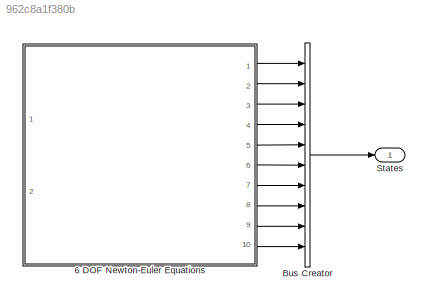
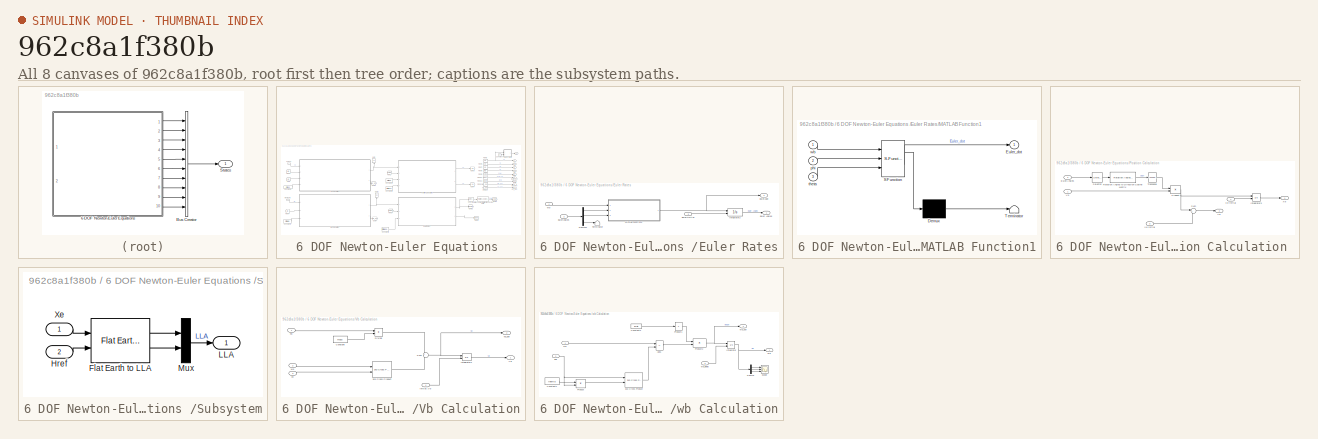
[diagram: thumbnail index - all 8 canvases of the model, root first then tree order]
MODEL slx_962c8a1f380b
KIND model
CONFIG AbsTol = auto
CONFIG EnableMultiTasking = off
CONFIG FixedStep = Ts
CONFIG MaxStep = auto
CONFIG MinStep = auto
CONFIG RelTol = 1e-3
CONFIG SampleTimeConstraint = Unconstrained
CONFIG Solver = VariableStepAuto
CONFIG SolverName = VariableStepAuto
CONFIG StartTime = 0.0
CONFIG StopTime = Tfinal
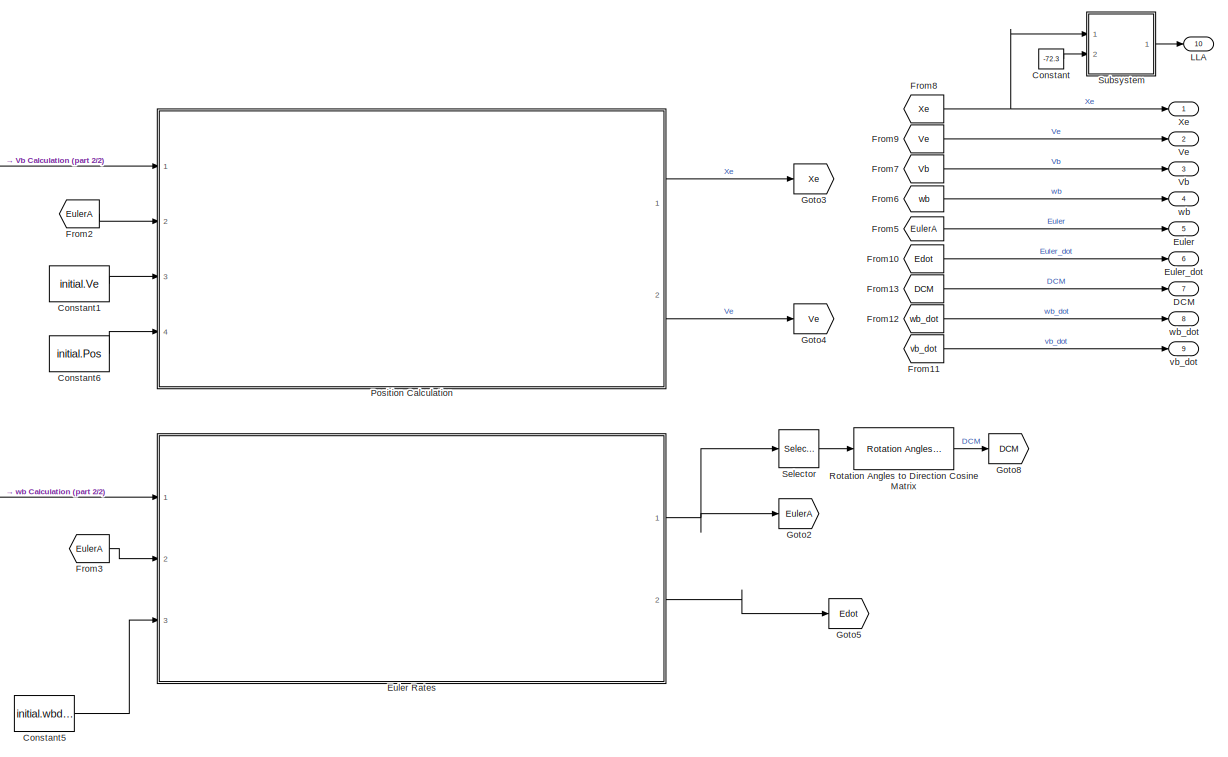
[diagram: 6 DOF Newton-Euler Equations  - part 1/2, right side, full height]
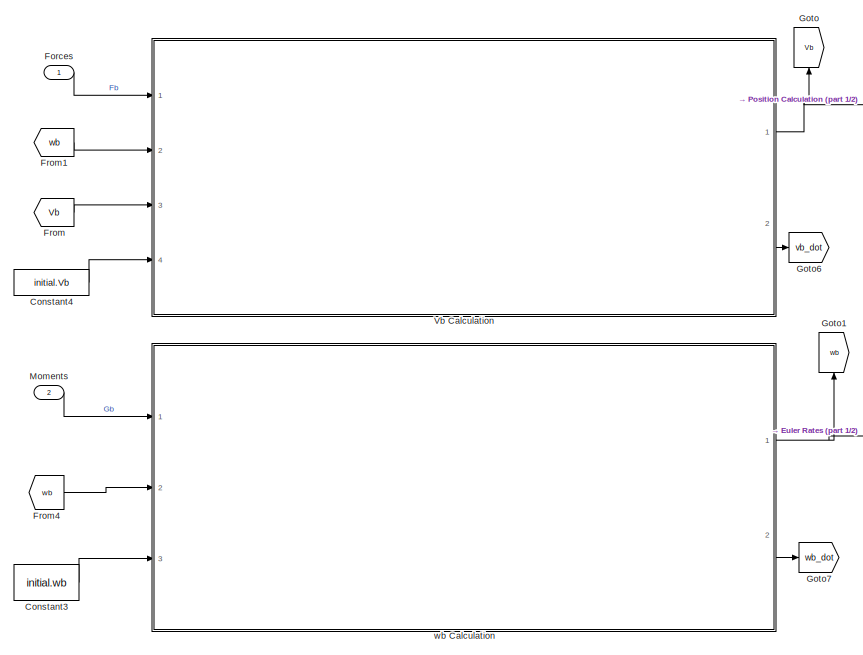
[diagram: 6 DOF Newton-Euler Equations  - part 2/2, left side, full height]
BLOCK [SubSystem] 6 DOF Newton-Euler Equations 
  Ports = [2, 10]
  RequestExecContextInheritance = off
BLOCK [Constant] 6 DOF Newton-Euler Equations /Constant
  Value = -72.3
BLOCK [Constant] 6 DOF Newton-Euler Equations /Constant1
  Value = initial.Ve
BLOCK [Constant] 6 DOF Newton-Euler Equations /Constant3
  Value = initial.wb
BLOCK [Constant] 6 DOF Newton-Euler Equations /Constant4
  Value = initial.Vb
BLOCK [Constant] 6 DOF Newton-Euler Equations /Constant5
  Value = initial.wbdot
BLOCK [Constant] 6 DOF Newton-Euler Equations /Constant6
  Value = initial.Pos
BLOCK [Outport] 6 DOF Newton-Euler Equations /DCM
  Port = 7
BLOCK [Outport] 6 DOF Newton-Euler Equations /Euler
  Port = 5
BLOCK [SubSystem] 6 DOF Newton-Euler Equations /Euler Rates
  Ports = [3, 2]
  RequestExecContextInheritance = off
BLOCK [Demux] 6 DOF Newton-Euler Equations /Euler Rates/Demux1
  Outputs = 3
  Ports = [1, 3]
BLOCK [Outport] 6 DOF Newton-Euler Equations /Euler Rates/Euler Angles
BLOCK [Outport] 6 DOF Newton-Euler Equations /Euler Rates/EulerAdot 
  Port = 2
BLOCK [Inport] 6 DOF Newton-Euler Equations /Euler Rates/EulerAinitial 
  Port = 3
BLOCK [Inport] 6 DOF Newton-Euler Equations /Euler Rates/EulerAngles
  Port = 2
BLOCK [Integrator] 6 DOF Newton-Euler Equations /Euler Rates/Integrator2
  IgnoreLimit = on
  InitialConditionSource = external
  LimitOutput = on
  LowerSaturationLimit = [-pi;-pi/2 ;-pi]
  Ports = [2, 1]
  UpperSaturationLimit = [pi; pi/2;pi]
  WrappedStateLowerValue = [-pi;-pi/2 ;-pi]
  WrappedStateUpperValue = [pi; pi/2;pi]
BLOCK [SubSystem] 6 DOF Newton-Euler Equations /Euler Rates/MATLAB Function1
  ErrorFcn = Stateflow.Translate.translate
  PermitHierarchicalResolution = ExplicitOnly
  Ports = [3, 1]
  RequestExecContextInheritance = off
  SFBlockType = MATLAB Function
  TreatAsAtomicUnit = on
BLOCK [Demux] 6 DOF Newton-Euler Equations /Euler Rates/MATLAB Function1/ Demux 
  Outputs = 1
  Ports = [1, 1]
BLOCK [S-Function] 6 DOF Newton-Euler Equations /Euler Rates/MATLAB Function1/ SFunction 
  EnableBusSupport = off
  FunctionName = sf_sfun
  PortCounts = [3 2]
  Ports = [3, 2]
  SFcnIsStateOwnerBlock = off
  SFunctionDeploymentMode = off
  Tag = Stateflow S-Function 1
BLOCK [Terminator] 6 DOF Newton-Euler Equations /Euler Rates/MATLAB Function1/ Terminator 
BLOCK [Outport] 6 DOF Newton-Euler Equations /Euler Rates/MATLAB Function1/Euler_dot
BLOCK [Inport] 6 DOF Newton-Euler Equations /Euler Rates/MATLAB Function1/phi
  Port = 2
BLOCK [Inport] 6 DOF Newton-Euler Equations /Euler Rates/MATLAB Function1/theta
  Port = 3
BLOCK [Inport] 6 DOF Newton-Euler Equations /Euler Rates/MATLAB Function1/wb
BLOCK [Terminator] 6 DOF Newton-Euler Equations /Euler Rates/Terminator
BLOCK [Inport] 6 DOF Newton-Euler Equations /Euler Rates/wb
BLOCK [Outport] 6 DOF Newton-Euler Equations /Euler_dot
  Port = 6
BLOCK [Inport] 6 DOF Newton-Euler Equations /Forces 
BLOCK [From] 6 DOF Newton-Euler Equations /From
  GotoTag = Vb
BLOCK [From] 6 DOF Newton-Euler Equations /From1
  GotoTag = wb
BLOCK [From] 6 DOF Newton-Euler Equations /From10
  GotoTag = Edot
BLOCK [From] 6 DOF Newton-Euler Equations /From11
  GotoTag = vb_dot
BLOCK [From] 6 DOF Newton-Euler Equations /From12
  GotoTag = wb_dot
BLOCK [From] 6 DOF Newton-Euler Equations /From13
  GotoTag = DCM
BLOCK [From] 6 DOF Newton-Euler Equations /From2
  GotoTag = EulerA
BLOCK [From] 6 DOF Newton-Euler Equations /From3
  GotoTag = EulerA
BLOCK [From] 6 DOF Newton-Euler Equations /From4
  GotoTag = wb
BLOCK [From] 6 DOF Newton-Euler Equations /From5
  GotoTag = EulerA
BLOCK [From] 6 DOF Newton-Euler Equations /From6
  GotoTag = wb
BLOCK [From] 6 DOF Newton-Euler Equations /From7
  GotoTag = Vb
BLOCK [From] 6 DOF Newton-Euler Equations /From8
  GotoTag = Xe
BLOCK [From] 6 DOF Newton-Euler Equations /From9
  GotoTag = Ve
BLOCK [Goto] 6 DOF Newton-Euler Equations /Goto
  GotoTag = Vb
  NameLocation = right
BLOCK [Goto] 6 DOF Newton-Euler Equations /Goto1
  GotoTag = wb
  NameLocation = right
BLOCK [Goto] 6 DOF Newton-Euler Equations /Goto2
  GotoTag = EulerA
BLOCK [Goto] 6 DOF Newton-Euler Equations /Goto3
  GotoTag = Xe
BLOCK [Goto] 6 DOF Newton-Euler Equations /Goto4
  GotoTag = Ve
BLOCK [Goto] 6 DOF Newton-Euler Equations /Goto5
  GotoTag = Edot
BLOCK [Goto] 6 DOF Newton-Euler Equations /Goto6
  GotoTag = vb_dot
BLOCK [Goto] 6 DOF Newton-Euler Equations /Goto7
  GotoTag = wb_dot
BLOCK [Goto] 6 DOF Newton-Euler Equations /Goto8
  GotoTag = DCM
BLOCK [Outport] 6 DOF Newton-Euler Equations /LLA 
  Port = 10
BLOCK [Inport] 6 DOF Newton-Euler Equations /Moments
  Port = 2
BLOCK [SubSystem] 6 DOF Newton-Euler Equations /Position Calculation 
  Ports = [4, 2]
  RequestExecContextInheritance = off
BLOCK [Inport] 6 DOF Newton-Euler Equations /Position Calculation /EulerAngles
  Port = 2
BLOCK [Integrator] 6 DOF Newton-Euler Equations /Position Calculation /Integrator3
  InitialConditionSource = external
  Ports = [2, 1]
BLOCK [Product] 6 DOF Newton-Euler Equations /Position Calculation /Product
  Multiplication = Matrix(*)
  Ports = [2, 1]
BLOCK [Reference] 6 DOF Newton-Euler Equations /Position Calculation /Rotation Angles to Direction Cosine Matrix  REF=sharedtransform/Rotation Angles to
Direction Cosine Matrix
  AttributesFormatString = Rotation Order: %<rotationOrder>
  Ports = [1, 1]
  SourceBlock = sharedtransform/Rotation Angles to\nDirection Cosine Matrix
  SourceProductBaseCode = AE,PW,MT,VE,VP
  SourceType = Ang2DCM
BLOCK [Selector] 6 DOF Newton-Euler Equations /Position Calculation /Selector
  IndexOptions = Index vector (dialog)
  Indices = [3 2 1]
  InputPortWidth = 3
  OutputSizes = 1
  Ports = [1, 1]
BLOCK [Sum] 6 DOF Newton-Euler Equations /Position Calculation /Sum
  Inputs = |++
  Ports = [2, 1]
BLOCK [Math] 6 DOF Newton-Euler Equations /Position Calculation /Transpose
  Operator = transpose
  Ports = [1, 1]
BLOCK [Inport] 6 DOF Newton-Euler Equations /Position Calculation /Vb
BLOCK [Outport] 6 DOF Newton-Euler Equations /Position Calculation /Ve
  Port = 2
BLOCK [Inport] 6 DOF Newton-Euler Equations /Position Calculation /Ve initial 
  Port = 3
BLOCK [Outport] 6 DOF Newton-Euler Equations /Position Calculation /Xe
BLOCK [Inport] 6 DOF Newton-Euler Equations /Position Calculation /Xe initial 
  Port = 4
BLOCK [Reference] 6 DOF Newton-Euler Equations /Rotation Angles to Direction Cosine Matrix  REF=sharedtransform/Rotation Angles to
Direction Cosine Matrix
  AttributesFormatString = Rotation Order: %<rotationOrder>
  Ports = [1, 1]
  SourceBlock = sharedtransform/Rotation Angles to\nDirection Cosine Matrix
  SourceProductBaseCode = AE,PW,MT,VE,VP
  SourceType = Ang2DCM
BLOCK [Selector] 6 DOF Newton-Euler Equations /Selector
  IndexOptions = Index vector (dialog)
  Indices = [3 2 1]
  InputPortWidth = 3
  OutputSizes = 1
  Ports = [1, 1]
BLOCK [SubSystem] 6 DOF Newton-Euler Equations /Subsystem
  Ports = [2, 1]
  RequestExecContextInheritance = off
BLOCK [Reference] 6 DOF Newton-Euler Equations /Subsystem/Flat Earth to LLA  REF=aerolibtransform2/Flat Earth to LLA
  Ports = [2, 2]
  SourceBlock = aerolibtransform2/Flat Earth to LLA
  SourceProductBaseCode = AE
  SourceType = Flat Earth to LLA
BLOCK [Inport] 6 DOF Newton-Euler Equations /Subsystem/Href
  Port = 2
BLOCK [Outport] 6 DOF Newton-Euler Equations /Subsystem/LLA
BLOCK [Mux] 6 DOF Newton-Euler Equations /Subsystem/Mux
  DisplayOption = bar
  Inputs = 2
  Ports = [2, 1]
BLOCK [Inport] 6 DOF Newton-Euler Equations /Subsystem/Xe
BLOCK [Outport] 6 DOF Newton-Euler Equations /Vb
  Port = 3
BLOCK [SubSystem] 6 DOF Newton-Euler Equations /Vb Calculation
  Ports = [4, 2]
  RequestExecContextInheritance = off
BLOCK [Reference] 6 DOF Newton-Euler Equations /Vb Calculation/3x3 Cross Product  REF=sharedutil/3x3 Cross Product
  Ports = [2, 1]
  SourceBlock = sharedutil/3x3 Cross Product
  SourceProductBaseCode = AE,PW,MT,VE,VP
  SourceType = CrossProduct
BLOCK [Constant] 6 DOF Newton-Euler Equations /Vb Calculation/Constant
  Value = mass
BLOCK [Product] 6 DOF Newton-Euler Equations /Vb Calculation/Divide
  Inputs = */
  Ports = [2, 1]
BLOCK [Inport] 6 DOF Newton-Euler Equations /Vb Calculation/Fb
BLOCK [Integrator] 6 DOF Newton-Euler Equations /Vb Calculation/Integrator1
  InitialConditionSource = external
  Ports = [2, 1]
BLOCK [Sum] 6 DOF Newton-Euler Equations /Vb Calculation/Sum
  Inputs = +|-
  Ports = [2, 1]
BLOCK [Outport] 6 DOF Newton-Euler Equations /Vb Calculation/Vb
BLOCK [Inport] 6 DOF Newton-Euler Equations /Vb Calculation/initial.Vb
  Port = 4
BLOCK [Inport] 6 DOF Newton-Euler Equations /Vb Calculation/vb 
  Port = 3
BLOCK [Outport] 6 DOF Newton-Euler Equations /Vb Calculation/vb_dot
  Port = 2
BLOCK [Inport] 6 DOF Newton-Euler Equations /Vb Calculation/wb
  Port = 2
BLOCK [Outport] 6 DOF Newton-Euler Equations /Ve
  Port = 2
BLOCK [Outport] 6 DOF Newton-Euler Equations /Xe
BLOCK [Outport] 6 DOF Newton-Euler Equations /vb_dot
  Port = 9
BLOCK [Outport] 6 DOF Newton-Euler Equations /wb
  Port = 4
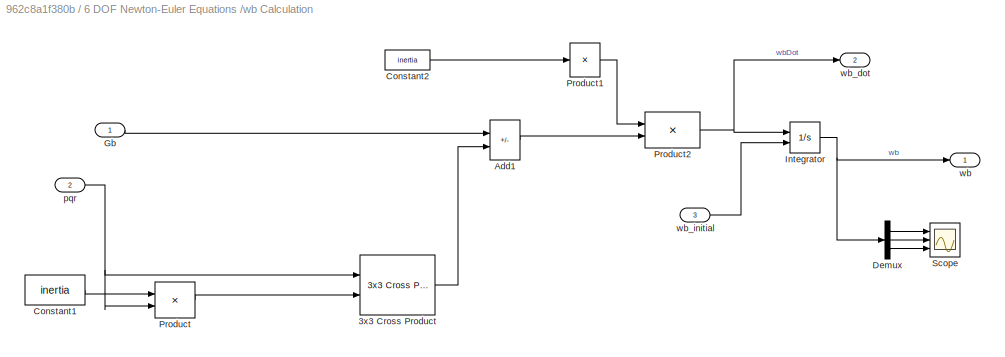
BLOCK [SubSystem] 6 DOF Newton-Euler Equations /wb Calculation
  Ports = [3, 2]
  RequestExecContextInheritance = off
BLOCK [Reference] 6 DOF Newton-Euler Equations /wb Calculation/3x3 Cross Product  REF=sharedutil/3x3 Cross Product
  Ports = [2, 1]
  SourceBlock = sharedutil/3x3 Cross Product
  SourceProductBaseCode = AE,PW,MT,VE,VP
  SourceType = CrossProduct
BLOCK [Sum] 6 DOF Newton-Euler Equations /wb Calculation/Add1
  IconShape = rectangular
  Inputs = +-
  Ports = [2, 1]
BLOCK [Constant] 6 DOF Newton-Euler Equations /wb Calculation/Constant1
  Value = inertia
BLOCK [Constant] 6 DOF Newton-Euler Equations /wb Calculation/Constant2
  Value = inertia
BLOCK [Demux] 6 DOF Newton-Euler Equations /wb Calculation/Demux
  Outputs = 3
  Ports = [1, 3]
BLOCK [Inport] 6 DOF Newton-Euler Equations /wb Calculation/Gb
BLOCK [Integrator] 6 DOF Newton-Euler Equations /wb Calculation/Integrator
  InitialConditionSource = external
  Ports = [2, 1]
BLOCK [Product] 6 DOF Newton-Euler Equations /wb Calculation/Product
  Multiplication = Matrix(*)
  Ports = [2, 1]
BLOCK [Product] 6 DOF Newton-Euler Equations /wb Calculation/Product1
  Inputs = /
  Multiplication = Matrix(*)
  Ports = [1, 1]
BLOCK [Product] 6 DOF Newton-Euler Equations /wb Calculation/Product2
  Multiplication = Matrix(*)
  Ports = [2, 1]
BLOCK [Scope] 6 DOF Newton-Euler Equations /wb Calculation/Scope
  Floating = off
  NumInputPorts = 3
  Ports = [3]
  ScopeSpecificationString = Simulink.scopes.TimeScopeBlockCfg('CurrentConfiguration', extmgr.ConfigurationSet(extmgr.Configuration('Core','General UI',true),extmgr.Configuration('Core','Source UI',true),extmgr.Configuration('Sources','WiredSimulink',true),extmgr.Configuration('Visuals','Time Domain',true,'SerializedDisplays',{struct('MinYLimReal','-7.11144','MaxYLimReal','5.5874','YLabelReal','','MinYLimMag','0.00000','MaxYL...<+2682ch>
BLOCK [Inport] 6 DOF Newton-Euler Equations /wb Calculation/pqr
  Port = 2
BLOCK [Outport] 6 DOF Newton-Euler Equations /wb Calculation/wb
BLOCK [Outport] 6 DOF Newton-Euler Equations /wb Calculation/wb_dot 
  Port = 2
BLOCK [Inport] 6 DOF Newton-Euler Equations /wb Calculation/wb_initial 
  Port = 3
BLOCK [Outport] 6 DOF Newton-Euler Equations /wb_dot
  Port = 8
BLOCK [BusCreator] Bus Creator
  DisplayOption = bar
  InheritFromInputs = on
  Inputs = 10
  Ports = [10, 1]
BLOCK [Outport] States
LINE 6 DOF Newton-Euler Equations /Constant1:1 -> 6 DOF Newton-Euler Equations /Position Calculation :3
LINE 6 DOF Newton-Euler Equations /Constant3:1 -> 6 DOF Newton-Euler Equations /wb Calculation:3
LINE 6 DOF Newton-Euler Equations /Constant4:1 -> 6 DOF Newton-Euler Equations /Vb Calculation:4
LINE 6 DOF Newton-Euler Equations /Constant5:1 -> 6 DOF Newton-Euler Equations /Euler Rates:3
LINE 6 DOF Newton-Euler Equations /Constant6:1 -> 6 DOF Newton-Euler Equations /Position Calculation :4
LINE 6 DOF Newton-Euler Equations /Constant:1 -> 6 DOF Newton-Euler Equations /Subsystem:2
LINE 6 DOF Newton-Euler Equations /Euler Rates/Demux1:1 -> 6 DOF Newton-Euler Equations /Euler Rates/MATLAB Function1:2
LINE 6 DOF Newton-Euler Equations /Euler Rates/Demux1:2 -> 6 DOF Newton-Euler Equations /Euler Rates/MATLAB Function1:3
LINE 6 DOF Newton-Euler Equations /Euler Rates/Demux1:3 -> 6 DOF Newton-Euler Equations /Euler Rates/Terminator:1
LINE 6 DOF Newton-Euler Equations /Euler Rates/EulerAinitial :1 -> 6 DOF Newton-Euler Equations /Euler Rates/Integrator2:2
LINE 6 DOF Newton-Euler Equations /Euler Rates/EulerAngles:1 -> 6 DOF Newton-Euler Equations /Euler Rates/Demux1:1
LINE 6 DOF Newton-Euler Equations /Euler Rates/Integrator2:1 -> 6 DOF Newton-Euler Equations /Euler Rates/Euler Angles:1
NET 6 DOF Newton-Euler Equations /Euler Rates/MATLAB Function1:1 -> 6 DOF Newton-Euler Equations /Euler Rates/EulerAdot :1, 6 DOF Newton-Euler Equations /Euler Rates/Integrator2:1
LINE 6 DOF Newton-Euler Equations /Euler Rates/wb:1 -> 6 DOF Newton-Euler Equations /Euler Rates/MATLAB Function1:1
NET 6 DOF Newton-Euler Equations /Euler Rates:1 -> 6 DOF Newton-Euler Equations /Goto2:1, 6 DOF Newton-Euler Equations /Selector:1
LINE 6 DOF Newton-Euler Equations /Euler Rates:2 -> 6 DOF Newton-Euler Equations /Goto5:1
LINE 6 DOF Newton-Euler Equations /Forces :1 -> 6 DOF Newton-Euler Equations /Vb Calculation:1
LINE 6 DOF Newton-Euler Equations /From10:1 -> 6 DOF Newton-Euler Equations /Euler_dot:1
LINE 6 DOF Newton-Euler Equations /From11:1 -> 6 DOF Newton-Euler Equations /vb_dot:1
LINE 6 DOF Newton-Euler Equations /From12:1 -> 6 DOF Newton-Euler Equations /wb_dot:1
LINE 6 DOF Newton-Euler Equations /From13:1 -> 6 DOF Newton-Euler Equations /DCM:1
LINE 6 DOF Newton-Euler Equations /From1:1 -> 6 DOF Newton-Euler Equations /Vb Calculation:2
LINE 6 DOF Newton-Euler Equations /From2:1 -> 6 DOF Newton-Euler Equations /Position Calculation :2
LINE 6 DOF Newton-Euler Equations /From3:1 -> 6 DOF Newton-Euler Equations /Euler Rates:2
LINE 6 DOF Newton-Euler Equations /From4:1 -> 6 DOF Newton-Euler Equations /wb Calculation:2
LINE 6 DOF Newton-Euler Equations /From5:1 -> 6 DOF Newton-Euler Equations /Euler:1
LINE 6 DOF Newton-Euler Equations /From6:1 -> 6 DOF Newton-Euler Equations /wb:1
LINE 6 DOF Newton-Euler Equations /From7:1 -> 6 DOF Newton-Euler Equations /Vb:1
NET 6 DOF Newton-Euler Equations /From8:1 -> 6 DOF Newton-Euler Equations /Subsystem:1, 6 DOF Newton-Euler Equations /Xe:1
LINE 6 DOF Newton-Euler Equations /From9:1 -> 6 DOF Newton-Euler Equations /Ve:1
LINE 6 DOF Newton-Euler Equations /From:1 -> 6 DOF Newton-Euler Equations /Vb Calculation:3
LINE 6 DOF Newton-Euler Equations /Moments:1 -> 6 DOF Newton-Euler Equations /wb Calculation:1
LINE 6 DOF Newton-Euler Equations /Position Calculation /EulerAngles:1 -> 6 DOF Newton-Euler Equations /Position Calculation /Selector:1
LINE 6 DOF Newton-Euler Equations /Position Calculation /Integrator3:1 -> 6 DOF Newton-Euler Equations /Position Calculation /Xe:1
NET 6 DOF Newton-Euler Equations /Position Calculation /Product:1 -> 6 DOF Newton-Euler Equations /Position Calculation /Integrator3:1, 6 DOF Newton-Euler Equations /Position Calculation /Sum:1
LINE 6 DOF Newton-Euler Equations /Position Calculation /Rotation Angles to Direction Cosine Matrix:1 -> 6 DOF Newton-Euler Equations /Position Calculation /Transpose:1
LINE 6 DOF Newton-Euler Equations /Position Calculation /Selector:1 -> 6 DOF Newton-Euler Equations /Position Calculation /Rotation Angles to Direction Cosine Matrix:1
LINE 6 DOF Newton-Euler Equations /Position Calculation /Sum:1 -> 6 DOF Newton-Euler Equations /Position Calculation /Ve:1
LINE 6 DOF Newton-Euler Equations /Position Calculation /Transpose:1 -> 6 DOF Newton-Euler Equations /Position Calculation /Product:1
LINE 6 DOF Newton-Euler Equations /Position Calculation /Vb:1 -> 6 DOF Newton-Euler Equations /Position Calculation /Product:2
LINE 6 DOF Newton-Euler Equations /Position Calculation /Ve initial :1 -> 6 DOF Newton-Euler Equations /Position Calculation /Sum:2
LINE 6 DOF Newton-Euler Equations /Position Calculation /Xe initial :1 -> 6 DOF Newton-Euler Equations /Position Calculation /Integrator3:2
LINE 6 DOF Newton-Euler Equations /Position Calculation :1 -> 6 DOF Newton-Euler Equations /Goto3:1
LINE 6 DOF Newton-Euler Equations /Position Calculation :2 -> 6 DOF Newton-Euler Equations /Goto4:1
LINE 6 DOF Newton-Euler Equations /Rotation Angles to Direction Cosine Matrix:1 -> 6 DOF Newton-Euler Equations /Goto8:1
LINE 6 DOF Newton-Euler Equations /Selector:1 -> 6 DOF Newton-Euler Equations /Rotation Angles to Direction Cosine Matrix:1
LINE 6 DOF Newton-Euler Equations /Subsystem/Flat Earth to LLA:1 -> 6 DOF Newton-Euler Equations /Subsystem/Mux:1
LINE 6 DOF Newton-Euler Equations /Subsystem/Flat Earth to LLA:2 -> 6 DOF Newton-Euler Equations /Subsystem/Mux:2
LINE 6 DOF Newton-Euler Equations /Subsystem/Href:1 -> 6 DOF Newton-Euler Equations /Subsystem/Flat Earth to LLA:2
LINE 6 DOF Newton-Euler Equations /Subsystem/Mux:1 -> 6 DOF Newton-Euler Equations /Subsystem/LLA:1
LINE 6 DOF Newton-Euler Equations /Subsystem/Xe:1 -> 6 DOF Newton-Euler Equations /Subsystem/Flat Earth to LLA:1
LINE 6 DOF Newton-Euler Equations /Subsystem:1 -> 6 DOF Newton-Euler Equations /LLA :1
LINE 6 DOF Newton-Euler Equations /Vb Calculation/3x3 Cross Product:1 -> 6 DOF Newton-Euler Equations /Vb Calculation/Sum:2
LINE 6 DOF Newton-Euler Equations /Vb Calculation/Constant:1 -> 6 DOF Newton-Euler Equations /Vb Calculation/Divide:2
LINE 6 DOF Newton-Euler Equations /Vb Calculation/Divide:1 -> 6 DOF Newton-Euler Equations /Vb Calculation/Sum:1
LINE 6 DOF Newton-Euler Equations /Vb Calculation/Fb:1 -> 6 DOF Newton-Euler Equations /Vb Calculation/Divide:1
LINE 6 DOF Newton-Euler Equations /Vb Calculation/Integrator1:1 -> 6 DOF Newton-Euler Equations /Vb Calculation/Vb:1
NET 6 DOF Newton-Euler Equations /Vb Calculation/Sum:1 -> 6 DOF Newton-Euler Equations /Vb Calculation/Integrator1:1, 6 DOF Newton-Euler Equations /Vb Calculation/vb_dot:1
LINE 6 DOF Newton-Euler Equations /Vb Calculation/initial.Vb:1 -> 6 DOF Newton-Euler Equations /Vb Calculation/Integrator1:2
LINE 6 DOF Newton-Euler Equations /Vb Calculation/vb :1 -> 6 DOF Newton-Euler Equations /Vb Calculation/3x3 Cross Product:2
LINE 6 DOF Newton-Euler Equations /Vb Calculation/wb:1 -> 6 DOF Newton-Euler Equations /Vb Calculation/3x3 Cross Product:1
NET 6 DOF Newton-Euler Equations /Vb Calculation:1 -> 6 DOF Newton-Euler Equations /Goto:1, 6 DOF Newton-Euler Equations /Position Calculation :1
LINE 6 DOF Newton-Euler Equations /Vb Calculation:2 -> 6 DOF Newton-Euler Equations /Goto6:1
LINE 6 DOF Newton-Euler Equations /wb Calculation/3x3 Cross Product:1 -> 6 DOF Newton-Euler Equations /wb Calculation/Add1:2
LINE 6 DOF Newton-Euler Equations /wb Calculation/Add1:1 -> 6 DOF Newton-Euler Equations /wb Calculation/Product2:2
LINE 6 DOF Newton-Euler Equations /wb Calculation/Constant1:1 -> 6 DOF Newton-Euler Equations /wb Calculation/Product:1
LINE 6 DOF Newton-Euler Equations /wb Calculation/Constant2:1 -> 6 DOF Newton-Euler Equations /wb Calculation/Product1:1
LINE 6 DOF Newton-Euler Equations /wb Calculation/Demux:1 -> 6 DOF Newton-Euler Equations /wb Calculation/Scope:1
LINE 6 DOF Newton-Euler Equations /wb Calculation/Demux:2 -> 6 DOF Newton-Euler Equations /wb Calculation/Scope:2
LINE 6 DOF Newton-Euler Equations /wb Calculation/Demux:3 -> 6 DOF Newton-Euler Equations /wb Calculation/Scope:3
LINE 6 DOF Newton-Euler Equations /wb Calculation/Gb:1 -> 6 DOF Newton-Euler Equations /wb Calculation/Add1:1
NET 6 DOF Newton-Euler Equations /wb Calculation/Integrator:1 -> 6 DOF Newton-Euler Equations /wb Calculation/Demux:1, 6 DOF Newton-Euler Equations /wb Calculation/wb:1
LINE 6 DOF Newton-Euler Equations /wb Calculation/Product1:1 -> 6 DOF Newton-Euler Equations /wb Calculation/Product2:1
NET 6 DOF Newton-Euler Equations /wb Calculation/Product2:1 -> 6 DOF Newton-Euler Equations /wb Calculation/Integrator:1, 6 DOF Newton-Euler Equations /wb Calculation/wb_dot :1
LINE 6 DOF Newton-Euler Equations /wb Calculation/Product:1 -> 6 DOF Newton-Euler Equations /wb Calculation/3x3 Cross Product:2
NET 6 DOF Newton-Euler Equations /wb Calculation/pqr:1 -> 6 DOF Newton-Euler Equations /wb Calculation/3x3 Cross Product:1, 6 DOF Newton-Euler Equations /wb Calculation/Product:2
LINE 6 DOF Newton-Euler Equations /wb Calculation/wb_initial :1 -> 6 DOF Newton-Euler Equations /wb Calculation/Integrator:2
NET 6 DOF Newton-Euler Equations /wb Calculation:1 -> 6 DOF Newton-Euler Equations /Euler Rates:1, 6 DOF Newton-Euler Equations /Goto1:1
LINE 6 DOF Newton-Euler Equations /wb Calculation:2 -> 6 DOF Newton-Euler Equations /Goto7:1
LINE 6 DOF Newton-Euler Equations :1 -> Bus Creator:1
LINE 6 DOF Newton-Euler Equations :10 -> Bus Creator:10
LINE 6 DOF Newton-Euler Equations :2 -> Bus Creator:2
LINE 6 DOF Newton-Euler Equations :3 -> Bus Creator:3
LINE 6 DOF Newton-Euler Equations :4 -> Bus Creator:4
LINE 6 DOF Newton-Euler Equations :5 -> Bus Creator:5
LINE 6 DOF Newton-Euler Equations :6 -> Bus Creator:6
LINE 6 DOF Newton-Euler Equations :7 -> Bus Creator:7
LINE 6 DOF Newton-Euler Equations :8 -> Bus Creator:8
LINE 6 DOF Newton-Euler Equations :9 -> Bus Creator:9
LINE Bus Creator:1 -> States:1
note: NET lines group one-source signal fan-out (src -> all destinations, sorted); 1:1 wires keep LINE
CHART 6 DOF Newton-Euler Equations
/Euler Rates/MATLAB Function1 states=1 transitions=1
  STATE_LABEL 'eML_blk_kernel()'
  STATE_LABEL 'SCRIPT:\nfunction Euler_dot = EulerRates(wb,phi,theta)\n\nRMatrix = [1 0 -sin(theta);...\n    0 cos(phi) sin(phi)*cos(theta);...\n    0 -sin(phi) cos(phi)*cos(theta)];\n\nEuler_dot = inv(RMatrix) * wb;\nend'
CHART  states=0 transitions=0
